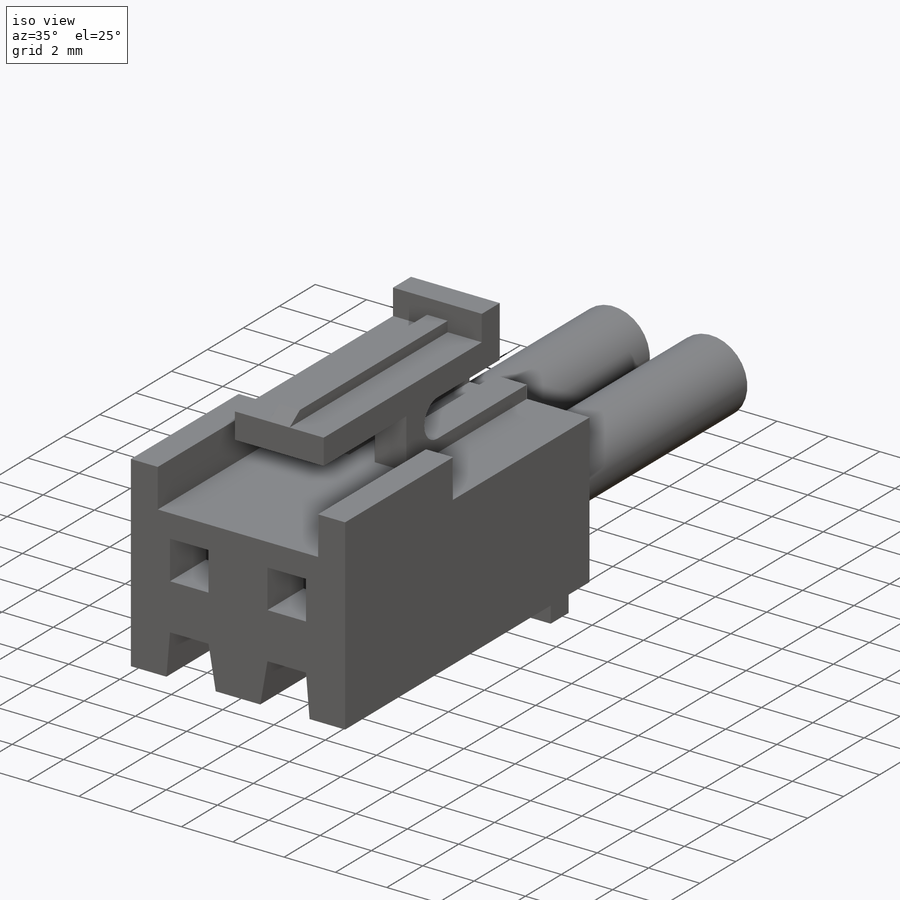
[diagram: iso view]
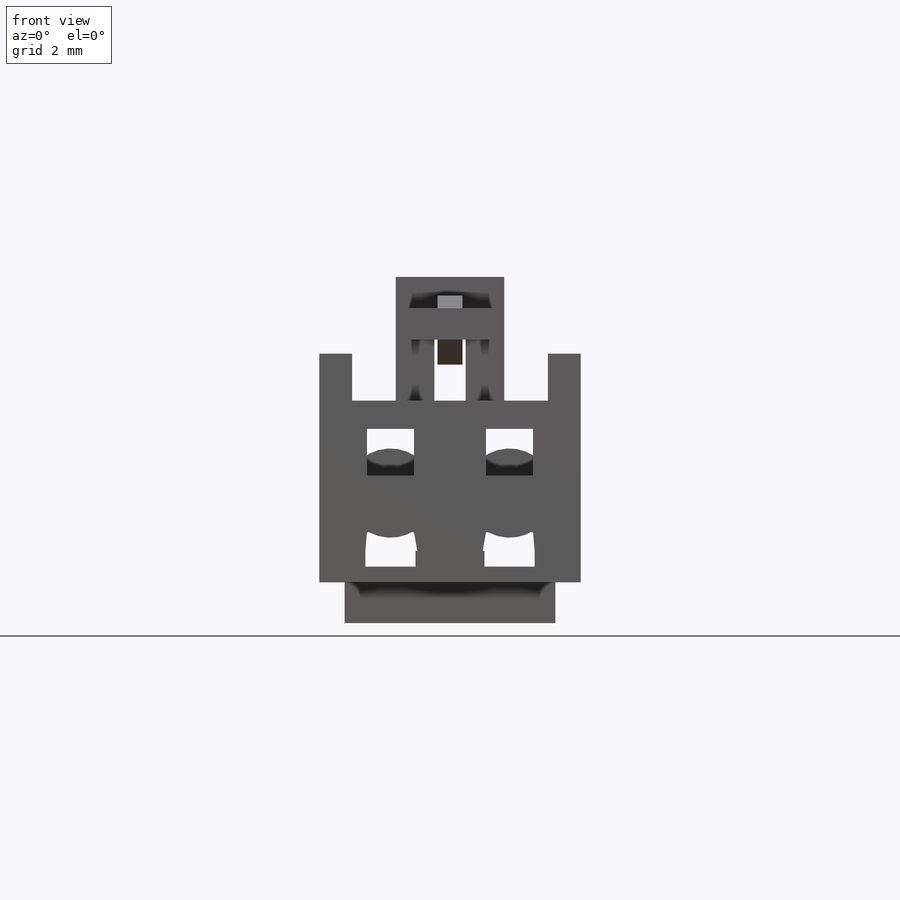
[diagram: front view]
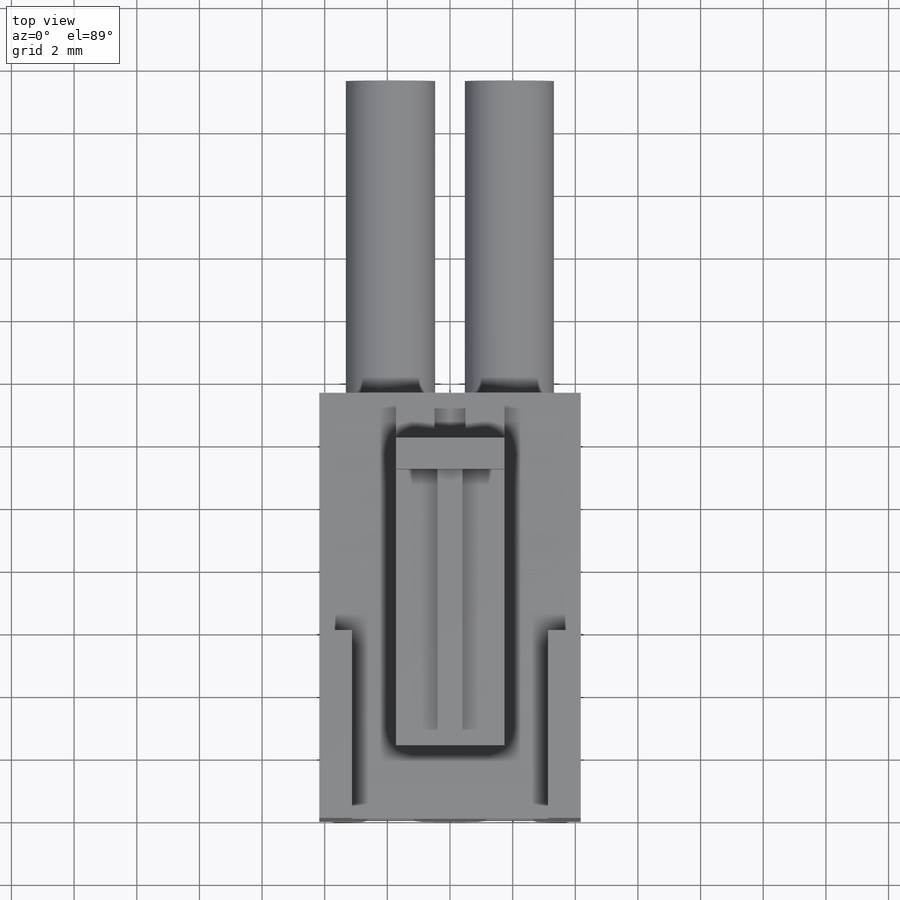
[diagram: top view]
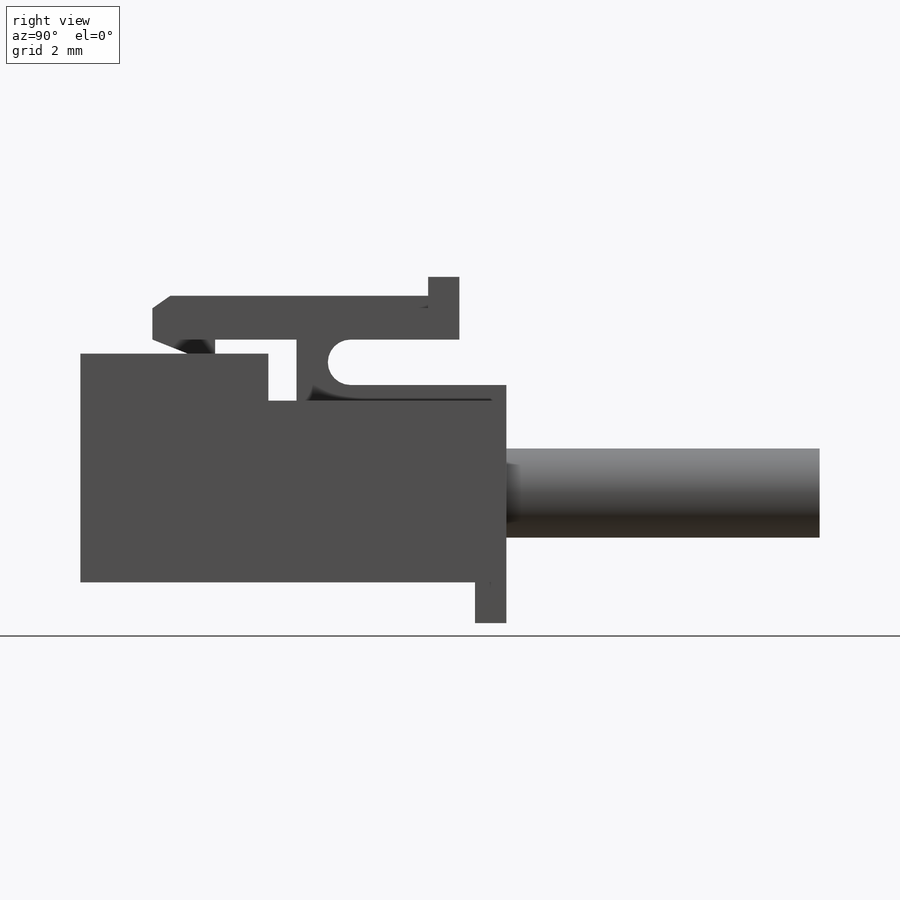
[diagram: right view]
SOLIDWORKS PART (.sldprt)
format: sldprt  version: not decoded by parser v0  size: 404,992 bytes
history: native  units: mm
features: sketch x10, extrude x6, cut_extrude x4, plane x3, material x1, mirror x1 (+10 scaffold rows collapsed)
feature tree (35):
  scaffold x10  (default folders/planes/origin — collapsed)
  material  "Matériau <non spécifié>"
  plane  "Plan de face"
  plane  "Plan de dessus"
  plane  "Plan de droite"
  sketch  "Esquisse1"  dims[c1.D1=~39.298113mm c1.D2=~71.167925mm c2.D1=8.35mm c2.D2=7.3mm c2.D3=1.05mm c2.D4=5.8mm c2.D5=3.8mm c2.D6=~0.646633mm c2.D7=~0.590404mm c3.D6=3.8mm c3.D7=1.5mm c3.D8=1.5mm c3.D9=0.9mm c3.D5=0.9mm]
  extrude  "Boss.-Extru.1"  Depth=13.6mm
  sketch  "Esquisse2"  dims[c1.D9=~1.452006mm c1.D10=0.725mm c1.D1=~1.443997mm c1.D2=~5.351282mm c2.D1=9.8mm c2.D2=1.5mm c2.D3=8.75mm c2.D4=1.0mm c2.D5=4.4mm c2.D6=2.0mm c2.D7=1.0mm c2.D8=0.5mm c2.D9=6.7mm c2.D10=1.0mm]
  extrude  "Boss.-Extru.2"  Depth=3.46mm
  sketch  "Esquisse3"  dims[c1.D1=0.4mm c1.D2=~0.66988mm c2.D2=35.0deg]
  extrude  "Boss.-Extru.3"  Depth=0.8mm
  sketch  "Esquisse4"  dims[D1=0.1mm D2=0.8mm]
  extrude  "Boss.-Extru.4"  Depth=0.8mm
  sketch  "Esquisse5"  dims[c1.D1=~1.818858mm c1.D2=~1.131814mm c2.D1=1.0mm]
  cut_extrude  "Enlèv. mat.-Extru.1"  [1 undecoded]
  sketch  "Esquisse6"  dims[c1.D1=~1.578381mm c1.D2=~6.386491mm c2.D1=6.73mm c2.D2=1.0mm c2.D3=~12.603833mm]
  extrude  "Boss.-Extru.5"  Depth=1.3mm
  sketch  "Esquisse8"  dims[c1.D1=~1.201334mm c1.D2=~6.867275mm c2.D1=6.0mm]
  cut_extrude  "Enlèv. mat.-Extru.3"  Depth=1.1mm
  mirror  "Symétrie1"
  sketch  "Esquisse7"  dims[c1.D1=~4.56379mm c1.D2=~2.816263mm c2.D1=0.5mm c2.D2=0.5mm c2.D3=0.5mm c2.D4=0.5mm c2.D5=0.5mm c2.D6=1.6mm]
  cut_extrude  "Enlèv. mat.-Extru.2"  Depth=11.6mm
  sketch  "Esquisse10"  dims[c1.D1=1.6mm c1.D2=7.3mm c2.D2=5.0deg c2.D3=1.6mm c3.D3=10.0deg c3.D4=~1.488741mm]
  cut_extrude  "Enlèv. mat.-Extru.4"  Depth=5.8mm
  sketch  "Esquisse11"  dims[D1=2.85mm D2=1.3mm D3=~0.767838mm]
  extrude  "Boss.-Extru.6"  Depth=10mm
decode coverage: 19 of 21 modeling features carry decoded parameters
note: ~ marks probable driven/reference dimensions
note: 1 parameter value undecoded
note: suppression state not decoded; provenance and decode notes live in map.json
